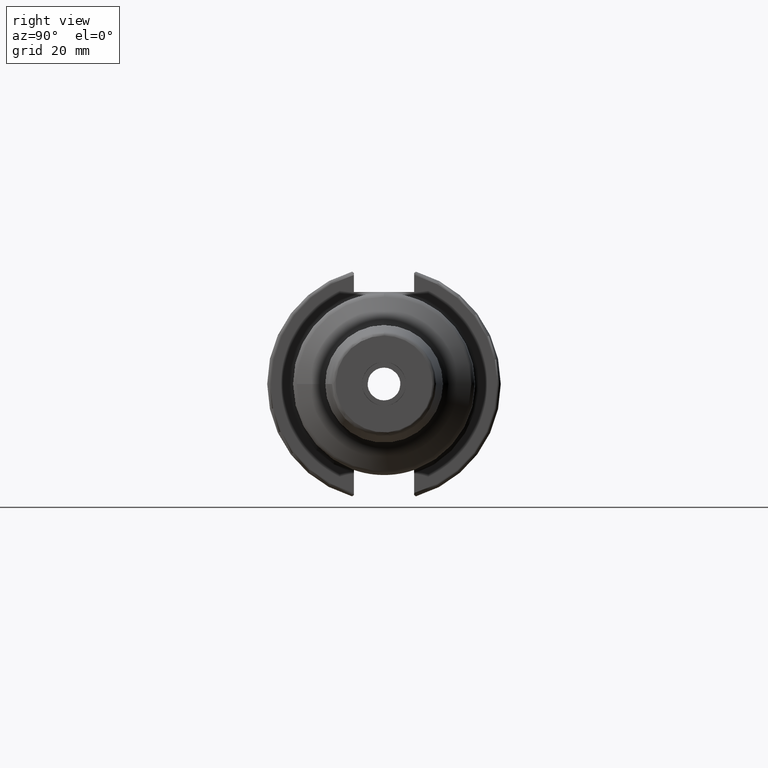
[diagram: clean part render]
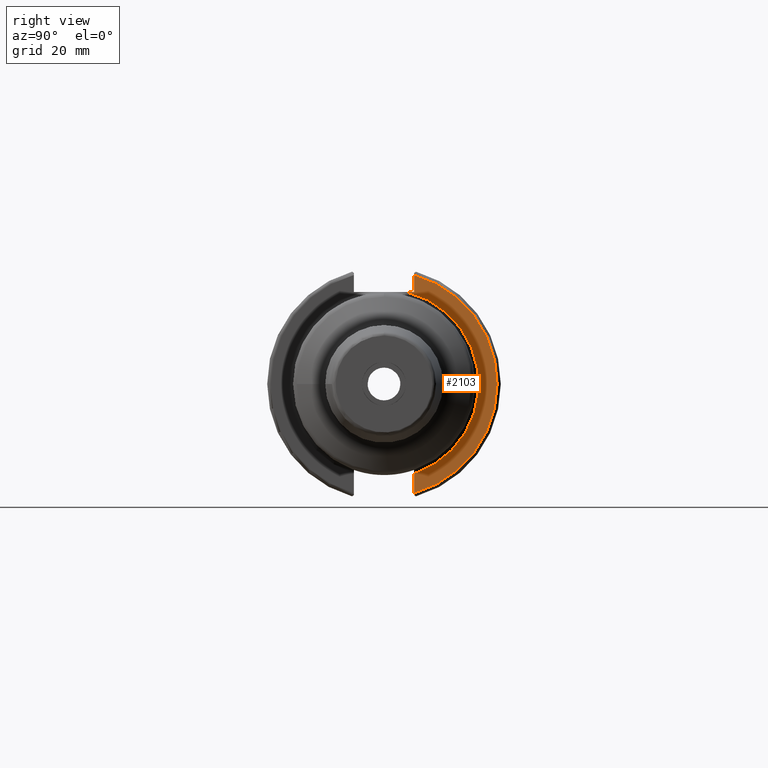
[diagram: same view with one face highlighted and labeled with its STEP entity id]
A machine part, right view. The second image highlights one B-rep face of the part: STEP entity #2103.
In plain terms, the highlighted planar face has unit normal (1, 0, 0).
Its self-contained STEP definition (entity closure, byte-faithful):
#53=PLANE('',#2333);
#204=FACE_OUTER_BOUND('',#315,.T.);
#315=EDGE_LOOP('',(#1601,#1602,#1603,#1604,#1605));
#418=LINE('',#3588,#512);
#419=LINE('',#3592,#513);
#420=LINE('',#3593,#514);
#512=VECTOR('',#2802,10.);
#513=VECTOR('',#2805,10.);
#514=VECTOR('',#2806,10.);
#668=CIRCLE('',#2303,25.75);
#688=CIRCLE('',#2334,30.75);
#840=VERTEX_POINT('',#3470);
#845=VERTEX_POINT('',#3498);
#866=VERTEX_POINT('',#3587);
#867=VERTEX_POINT('',#3589);
#868=VERTEX_POINT('',#3591);
#1111=EDGE_CURVE('',#845,#840,#668,.T.);
#1141=EDGE_CURVE('',#845,#866,#418,.T.);
#1142=EDGE_CURVE('',#867,#866,#688,.T.);
#1143=EDGE_CURVE('',#867,#868,#419,.T.);
#1144=EDGE_CURVE('',#868,#840,#420,.T.);
#1601=ORIENTED_EDGE('',*,*,#1111,.F.);
#1602=ORIENTED_EDGE('',*,*,#1141,.T.);
#1603=ORIENTED_EDGE('',*,*,#1142,.F.);
#1604=ORIENTED_EDGE('',*,*,#1143,.T.);
#1605=ORIENTED_EDGE('',*,*,#1144,.T.);
#2103=ADVANCED_FACE('',(#204),#53,.T.);
#2303=AXIS2_PLACEMENT_3D('',#3509,#2731,#2732);
#2333=AXIS2_PLACEMENT_3D('',#3586,#2800,#2801);
#2334=AXIS2_PLACEMENT_3D('',#3590,#2803,#2804);
#2731=DIRECTION('center_axis',(1.,0.,0.));
#2732=DIRECTION('ref_axis',(0.,6.12323399573677E-17,1.));
#2800=DIRECTION('center_axis',(1.,0.,0.));
#2801=DIRECTION('ref_axis',(0.,0.,-1.));
#2802=DIRECTION('',(0.,0.,-1.));
#2803=DIRECTION('center_axis',(-1.,0.,0.));
#2804=DIRECTION('ref_axis',(0.,1.,-6.12323399573677E-17));
#2805=DIRECTION('',(0.,0.,-1.));
#2806=DIRECTION('',(0.,-1.,0.));
#3470=CARTESIAN_POINT('',(19.05,6.16948133962656,25.));
#3498=CARTESIAN_POINT('',(19.05,8.19,-24.4128326910254));
#3509=CARTESIAN_POINT('Origin',(19.05,0.,0.));
#3586=CARTESIAN_POINT('Origin',(19.05,0.,0.));
#3587=CARTESIAN_POINT('',(19.05,8.19,-29.6392712461019));
#3588=CARTESIAN_POINT('',(19.05,8.19,-11.3));
#3589=CARTESIAN_POINT('',(19.05,8.19,29.6392712461019));
#3590=CARTESIAN_POINT('Origin',(19.05,0.,0.));
#3591=CARTESIAN_POINT('',(19.05,8.19,25.));
#3592=CARTESIAN_POINT('',(19.05,8.19,12.5));
#3593=CARTESIAN_POINT('',(19.05,0.,25.));